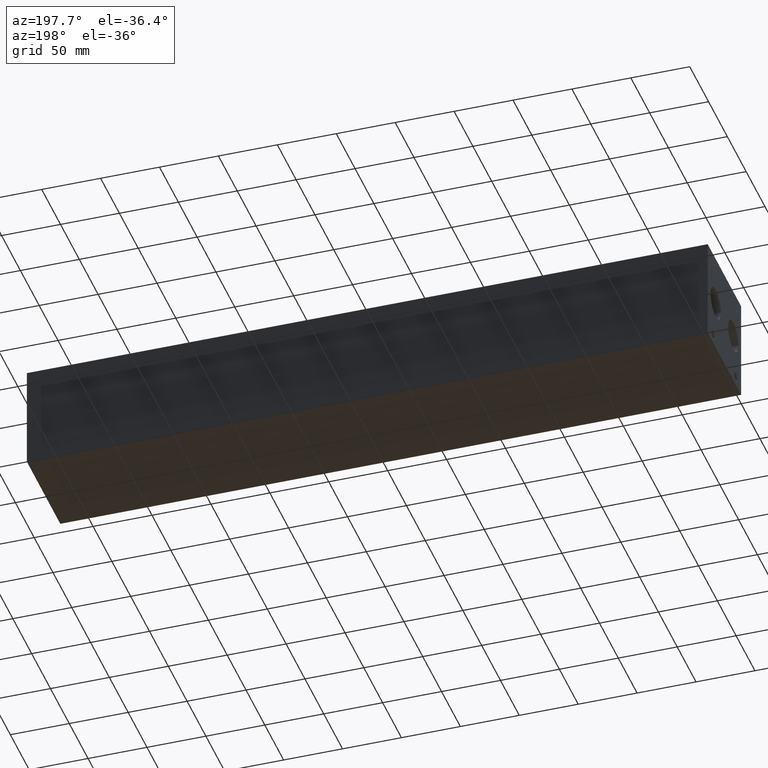
[diagram: clean part render]
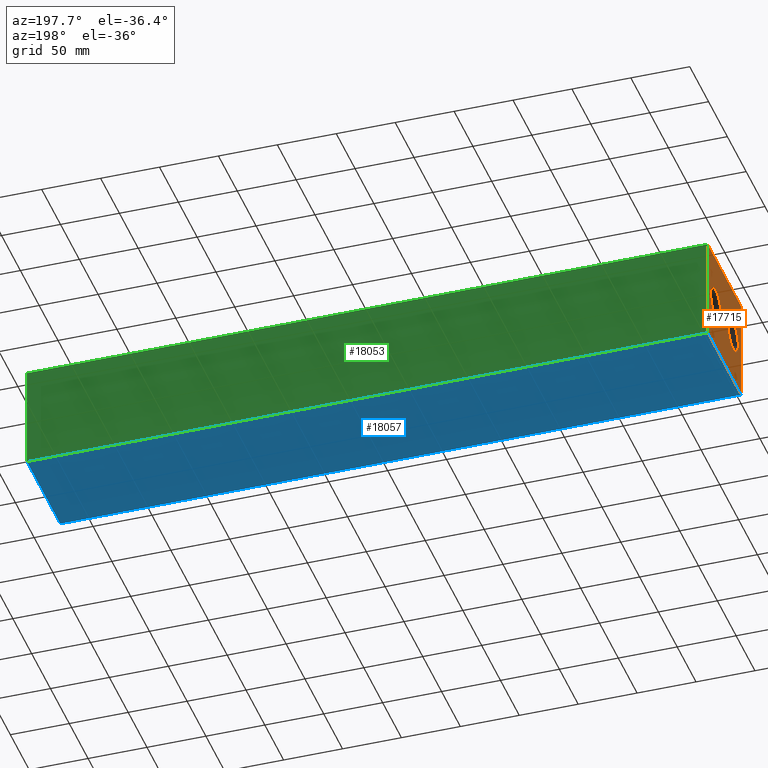
[diagram: same view with three faces highlighted in distinct colors, each labeled with its STEP entity id]
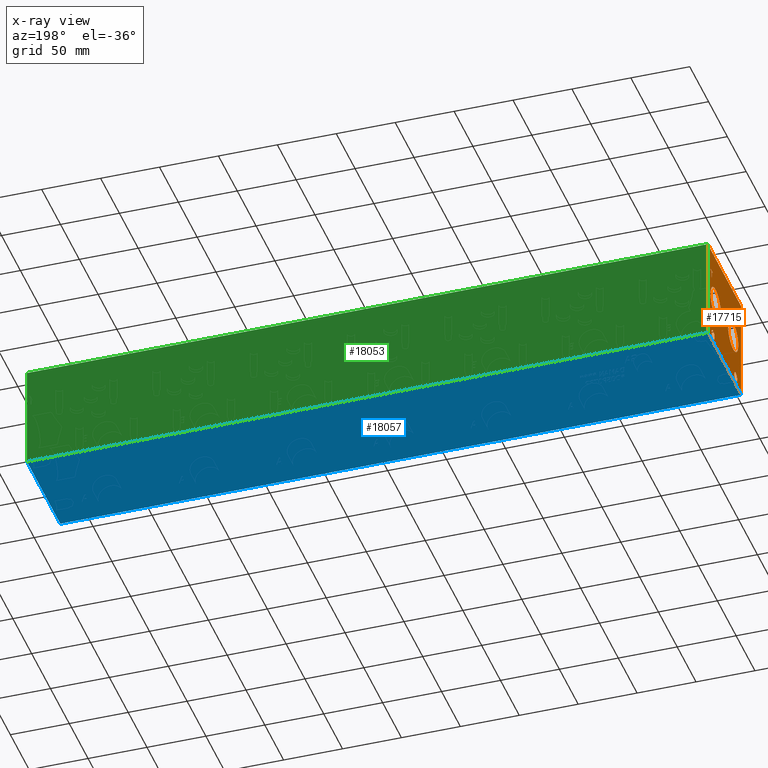
[diagram: x-ray of the same camera — body ghosted, the three highlighted faces saturated]
A machine part, auxiliary view with three faces highlighted in distinct colors.
The next image is the same camera in x-ray (body ghosted, the three faces saturated) — at least one of them is partly hidden behind the body in this view.
Their STEP definitions:

[orange] entity #17715 — the highlighted planar face has unit normal (-1, 0, 0).
#469=CIRCLE('',#18500,3.9624);
#470=CIRCLE('',#18501,3.9624);
#471=CIRCLE('',#18502,3.9624);
#472=CIRCLE('',#18503,3.9624);
#473=CIRCLE('',#18504,13.462);
#474=CIRCLE('',#18505,13.462);
#475=CIRCLE('',#18506,13.462);
#476=CIRCLE('',#18507,13.462);
#1294=B_SPLINE_CURVE_WITH_KNOTS('',2,(#29012,#29013,#29014,#29015),
 .UNSPECIFIED.,.F.,.F.,(3,1,3),(0.,1.,2.),.UNSPECIFIED.);
#1296=B_SPLINE_CURVE_WITH_KNOTS('',2,(#29033,#29034,#29035,#29036),
 .UNSPECIFIED.,.F.,.F.,(3,1,3),(0.,1.,2.),.UNSPECIFIED.);
#1298=B_SPLINE_CURVE_WITH_KNOTS('',2,(#29082,#29083,#29084,#29085),
 .UNSPECIFIED.,.F.,.F.,(3,1,3),(0.,1.,2.),.UNSPECIFIED.);
#1300=B_SPLINE_CURVE_WITH_KNOTS('',2,(#29100,#29101,#29102,#29103),
 .UNSPECIFIED.,.F.,.F.,(3,1,3),(0.,1.,2.),.UNSPECIFIED.);
#1417=FACE_BOUND('',#3143,.T.);
#1418=FACE_BOUND('',#3144,.T.);
#1419=FACE_BOUND('',#3145,.T.);
#1420=FACE_BOUND('',#3146,.T.);
#1421=FACE_BOUND('',#3147,.T.);
#1422=FACE_BOUND('',#3148,.T.);
#2131=FACE_OUTER_BOUND('',#3142,.T.);
#3142=EDGE_LOOP('',(#14229,#14230,#14231,#14232));
#3143=EDGE_LOOP('',(#14233,#14234));
#3144=EDGE_LOOP('',(#14235,#14236));
#3145=EDGE_LOOP('',(#14237,#14238));
#3146=EDGE_LOOP('',(#14239,#14240));
#3147=EDGE_LOOP('',(#14241,#14242,#14243,#14244,#14245,#14246,#14247,#14248));
#3148=EDGE_LOOP('',(#14249,#14250,#14251,#14252,#14253,#14254,#14255,#14256,
#14257));
#3644=LINE('',#23294,#5227);
#4813=LINE('',#29045,#6396);
#4816=LINE('',#29051,#6399);
#4819=LINE('',#29057,#6402);
#4822=LINE('',#29063,#6405);
#4825=LINE('',#29069,#6408);
#4829=LINE('',#29111,#6412);
#4830=LINE('',#29113,#6413);
#4831=LINE('',#29114,#6414);
#4832=LINE('',#29133,#6415);
#4833=LINE('',#29135,#6416);
#4834=LINE('',#29137,#6417);
#4835=LINE('',#29139,#6418);
#4836=LINE('',#29141,#6419);
#4837=LINE('',#29143,#6420);
#4838=LINE('',#29145,#6421);
#4839=LINE('',#29146,#6422);
#5227=VECTOR('',#19323,10.);
#6396=VECTOR('',#21310,10.);
#6399=VECTOR('',#21315,10.);
#6402=VECTOR('',#21320,10.);
#6405=VECTOR('',#21325,10.);
#6408=VECTOR('',#21330,10.);
#6412=VECTOR('',#21338,10.);
#6413=VECTOR('',#21339,10.);
#6414=VECTOR('',#21340,10.);
#6415=VECTOR('',#21357,10.);
#6416=VECTOR('',#21358,10.);
#6417=VECTOR('',#21359,10.);
#6418=VECTOR('',#21360,10.);
#6419=VECTOR('',#21361,10.);
#6420=VECTOR('',#21362,10.);
#6421=VECTOR('',#21363,10.);
#6422=VECTOR('',#21364,10.);
#6796=VERTEX_POINT('',#23287);
#6799=VERTEX_POINT('',#23292);
#7870=VERTEX_POINT('',#29010);
#7871=VERTEX_POINT('',#29011);
#7874=VERTEX_POINT('',#29032);
#7876=VERTEX_POINT('',#29044);
#7878=VERTEX_POINT('',#29050);
#7880=VERTEX_POINT('',#29056);
#7882=VERTEX_POINT('',#29062);
#7884=VERTEX_POINT('',#29068);
#7886=VERTEX_POINT('',#29081);
#7888=VERTEX_POINT('',#29110);
#7889=VERTEX_POINT('',#29112);
#7890=VERTEX_POINT('',#29115);
#7891=VERTEX_POINT('',#29116);
#7892=VERTEX_POINT('',#29119);
#7893=VERTEX_POINT('',#29120);
#7894=VERTEX_POINT('',#29123);
#7895=VERTEX_POINT('',#29124);
#7896=VERTEX_POINT('',#29127);
#7897=VERTEX_POINT('',#29128);
#7898=VERTEX_POINT('',#29131);
#7899=VERTEX_POINT('',#29132);
#7900=VERTEX_POINT('',#29134);
#7901=VERTEX_POINT('',#29136);
#7902=VERTEX_POINT('',#29138);
#7903=VERTEX_POINT('',#29140);
#7904=VERTEX_POINT('',#29142);
#7905=VERTEX_POINT('',#29144);
#8562=EDGE_CURVE('',#6796,#6799,#3644,.T.);
#10144=EDGE_CURVE('',#7870,#7871,#1294,.T.);
#10148=EDGE_CURVE('',#7874,#7870,#1296,.T.);
#10151=EDGE_CURVE('',#7876,#7874,#4813,.T.);
#10154=EDGE_CURVE('',#7878,#7876,#4816,.T.);
#10157=EDGE_CURVE('',#7880,#7878,#4819,.T.);
#10160=EDGE_CURVE('',#7882,#7880,#4822,.T.);
#10163=EDGE_CURVE('',#7884,#7882,#4825,.T.);
#10166=EDGE_CURVE('',#7886,#7884,#1298,.T.);
#10169=EDGE_CURVE('',#7871,#7886,#1300,.T.);
#10171=EDGE_CURVE('',#7888,#6796,#4829,.T.);
#10172=EDGE_CURVE('',#7889,#6799,#4830,.T.);
#10173=EDGE_CURVE('',#7888,#7889,#4831,.T.);
#10174=EDGE_CURVE('',#7890,#7891,#469,.T.);
#10175=EDGE_CURVE('',#7891,#7890,#470,.T.);
#10176=EDGE_CURVE('',#7892,#7893,#471,.T.);
#10177=EDGE_CURVE('',#7893,#7892,#472,.T.);
#10178=EDGE_CURVE('',#7894,#7895,#473,.T.);
#10179=EDGE_CURVE('',#7895,#7894,#474,.T.);
#10180=EDGE_CURVE('',#7896,#7897,#475,.T.);
#10181=EDGE_CURVE('',#7897,#7896,#476,.T.);
#10182=EDGE_CURVE('',#7898,#7899,#4832,.T.);
#10183=EDGE_CURVE('',#7899,#7900,#4833,.T.);
#10184=EDGE_CURVE('',#7900,#7901,#4834,.T.);
#10185=EDGE_CURVE('',#7901,#7902,#4835,.T.);
#10186=EDGE_CURVE('',#7902,#7903,#4836,.T.);
#10187=EDGE_CURVE('',#7903,#7904,#4837,.T.);
#10188=EDGE_CURVE('',#7904,#7905,#4838,.T.);
#10189=EDGE_CURVE('',#7905,#7898,#4839,.T.);
#14229=ORIENTED_EDGE('',*,*,#10171,.T.);
#14230=ORIENTED_EDGE('',*,*,#8562,.T.);
#14231=ORIENTED_EDGE('',*,*,#10172,.F.);
#14232=ORIENTED_EDGE('',*,*,#10173,.F.);
#14233=ORIENTED_EDGE('',*,*,#10174,.T.);
#14234=ORIENTED_EDGE('',*,*,#10175,.T.);
#14235=ORIENTED_EDGE('',*,*,#10176,.T.);
#14236=ORIENTED_EDGE('',*,*,#10177,.T.);
#14237=ORIENTED_EDGE('',*,*,#10178,.T.);
#14238=ORIENTED_EDGE('',*,*,#10179,.T.);
#14239=ORIENTED_EDGE('',*,*,#10180,.T.);
#14240=ORIENTED_EDGE('',*,*,#10181,.T.);
#14241=ORIENTED_EDGE('',*,*,#10182,.T.);
#14242=ORIENTED_EDGE('',*,*,#10183,.T.);
#14243=ORIENTED_EDGE('',*,*,#10184,.T.);
#14244=ORIENTED_EDGE('',*,*,#10185,.T.);
#14245=ORIENTED_EDGE('',*,*,#10186,.T.);
#14246=ORIENTED_EDGE('',*,*,#10187,.T.);
#14247=ORIENTED_EDGE('',*,*,#10188,.T.);
#14248=ORIENTED_EDGE('',*,*,#10189,.T.);
#14249=ORIENTED_EDGE('',*,*,#10144,.T.);
#14250=ORIENTED_EDGE('',*,*,#10169,.T.);
#14251=ORIENTED_EDGE('',*,*,#10166,.T.);
#14252=ORIENTED_EDGE('',*,*,#10163,.T.);
#14253=ORIENTED_EDGE('',*,*,#10160,.T.);
#14254=ORIENTED_EDGE('',*,*,#10157,.T.);
#14255=ORIENTED_EDGE('',*,*,#10154,.T.);
#14256=ORIENTED_EDGE('',*,*,#10151,.T.);
#14257=ORIENTED_EDGE('',*,*,#10148,.T.);
#16375=PLANE('',#18499);
#17715=ADVANCED_FACE('',(#2131,#1417,#1418,#1419,#1420,#1421,#1422),#16375,
 .T.);
#18499=AXIS2_PLACEMENT_3D('',#29109,#21336,#21337);
#18500=AXIS2_PLACEMENT_3D('',#29117,#21341,#21342);
#18501=AXIS2_PLACEMENT_3D('',#29118,#21343,#21344);
#18502=AXIS2_PLACEMENT_3D('',#29121,#21345,#21346);
#18503=AXIS2_PLACEMENT_3D('',#29122,#21347,#21348);
#18504=AXIS2_PLACEMENT_3D('',#29125,#21349,#21350);
#18505=AXIS2_PLACEMENT_3D('',#29126,#21351,#21352);
#18506=AXIS2_PLACEMENT_3D('',#29129,#21353,#21354);
#18507=AXIS2_PLACEMENT_3D('',#29130,#21355,#21356);
#19323=DIRECTION('',(0.,0.,1.));
#21310=DIRECTION('',(0.,-1.,-5.56775304226775E-15));
#21315=DIRECTION('',(0.,-3.14708893596576E-15,1.));
#21320=DIRECTION('',(0.,1.,0.));
#21325=DIRECTION('',(0.,2.81413604853751E-15,-1.));
#21330=DIRECTION('',(0.,1.,0.));
#21336=DIRECTION('center_axis',(-1.,0.,0.));
#21337=DIRECTION('ref_axis',(0.,-1.,0.));
#21338=DIRECTION('',(0.,-1.,0.));
#21339=DIRECTION('',(0.,-1.,0.));
#21340=DIRECTION('',(0.,0.,1.));
#21341=DIRECTION('center_axis',(1.,0.,0.));
#21342=DIRECTION('ref_axis',(0.,1.,0.));
#21343=DIRECTION('center_axis',(1.,0.,0.));
#21344=DIRECTION('ref_axis',(0.,1.,0.));
#21345=DIRECTION('center_axis',(1.,0.,0.));
#21346=DIRECTION('ref_axis',(0.,1.,0.));
#21347=DIRECTION('center_axis',(1.,0.,0.));
#21348=DIRECTION('ref_axis',(0.,1.,0.));
#21349=DIRECTION('center_axis',(1.,0.,0.));
#21350=DIRECTION('ref_axis',(0.,1.,0.));
#21351=DIRECTION('center_axis',(1.,0.,0.));
#21352=DIRECTION('ref_axis',(0.,1.,0.));
#21353=DIRECTION('center_axis',(1.,0.,0.));
#21354=DIRECTION('ref_axis',(0.,1.,0.));
#21355=DIRECTION('center_axis',(1.,0.,0.));
#21356=DIRECTION('ref_axis',(0.,1.,0.));
#21357=DIRECTION('',(0.,1.,0.));
#21358=DIRECTION('',(0.,-3.17280044688052E-15,1.));
#21359=DIRECTION('',(0.,1.,4.16909044227778E-15));
#21360=DIRECTION('',(0.,0.,1.));
#21361=DIRECTION('',(0.,-1.,-3.47984565141734E-15));
#21362=DIRECTION('',(0.,0.,-1.));
#21363=DIRECTION('',(0.,1.,0.));
#21364=DIRECTION('',(0.,3.17280044688052E-15,-1.));
#23287=CARTESIAN_POINT('',(0.,0.,0.));
#23292=CARTESIAN_POINT('',(0.,0.,88.9));
#23294=CARTESIAN_POINT('',(0.,0.,0.));
#29010=CARTESIAN_POINT('',(0.,7.21193279764059,69.4537681439707));
#29011=CARTESIAN_POINT('',(0.,6.455490345468,67.9357373726039));
#29012=CARTESIAN_POINT('Ctrl Pts',(0.,7.21193279764059,69.4537681439707));
#29013=CARTESIAN_POINT('Ctrl Pts',(0.,6.85686797315142,69.2119123939563));
#29014=CARTESIAN_POINT('Ctrl Pts',(0.,6.455490345468,68.4657616758269));
#29015=CARTESIAN_POINT('Ctrl Pts',(0.,6.455490345468,67.9357373726039));
#29032=CARTESIAN_POINT('',(0.,8.87404784561168,69.8499999046326));
#29033=CARTESIAN_POINT('Ctrl Pts',(0.,8.87404784561168,69.8499999046326));
#29034=CARTESIAN_POINT('Ctrl Pts',(0.,8.30800247323763,69.8499999046326));
#29035=CARTESIAN_POINT('Ctrl Pts',(0.,7.51553895191395,69.6647486918556));
#29036=CARTESIAN_POINT('Ctrl Pts',(0.,7.21193279764059,69.4537681439707));
#29044=CARTESIAN_POINT('',(0.,10.4692666223022,69.8499999046326));
#29045=CARTESIAN_POINT('',(0.,49.6846333111509,69.8499999046328));
#29050=CARTESIAN_POINT('',(0.,10.4692666223022,63.5));
#29051=CARTESIAN_POINT('',(0.,10.4692666223023,31.7499999999999));
#29056=CARTESIAN_POINT('',(0.,9.62534443076272,63.5));
#29057=CARTESIAN_POINT('',(0.,49.2626722153814,63.5));
#29062=CARTESIAN_POINT('',(0.,9.62534443076271,65.8670988299279));
#29063=CARTESIAN_POINT('',(0.,9.6253444307628,32.9335494149638));
#29068=CARTESIAN_POINT('',(0.,8.91006891476277,65.8670988299279));
#29069=CARTESIAN_POINT('',(0.,48.9050344573814,65.8670988299279));
#29081=CARTESIAN_POINT('',(0.,7.01124398379889,66.5257698086904));
#29082=CARTESIAN_POINT('Ctrl Pts',(0.,7.01124398379889,66.5257698086904));
#29083=CARTESIAN_POINT('Ctrl Pts',(0.,7.34057947318016,66.2015801863307));
#29084=CARTESIAN_POINT('Ctrl Pts',(0.,8.2308144679139,65.8670988299279));
#29085=CARTESIAN_POINT('Ctrl Pts',(0.,8.91006891476277,65.8670988299279));
#29100=CARTESIAN_POINT('Ctrl Pts',(0.,6.455490345468,67.9357373726039));
#29101=CARTESIAN_POINT('Ctrl Pts',(0.,6.455490345468,67.5240680108774));
#29102=CARTESIAN_POINT('Ctrl Pts',(0.,6.7488047656982,66.7830631597695));
#29103=CARTESIAN_POINT('Ctrl Pts',(0.,7.01124398379889,66.5257698086904));
#29109=CARTESIAN_POINT('Origin',(0.,88.9,0.));
#29110=CARTESIAN_POINT('',(0.,88.9,0.));
#29111=CARTESIAN_POINT('',(0.,88.9,0.));
#29112=CARTESIAN_POINT('',(0.,88.9,88.9));
#29113=CARTESIAN_POINT('',(0.,88.9,88.9));
#29114=CARTESIAN_POINT('',(0.,88.9,0.));
#29115=CARTESIAN_POINT('',(0.,78.5876,7.92479999999999));
#29116=CARTESIAN_POINT('',(0.,70.6628,7.92479999999999));
#29117=CARTESIAN_POINT('Origin',(0.,74.6252,7.92479999999999));
#29118=CARTESIAN_POINT('Origin',(0.,74.6252,7.92479999999999));
#29119=CARTESIAN_POINT('',(0.,18.2372,7.92479999999999));
#29120=CARTESIAN_POINT('',(0.,10.3124,7.92479999999999));
#29121=CARTESIAN_POINT('Origin',(0.,14.2748,7.92479999999999));
#29122=CARTESIAN_POINT('Origin',(0.,14.2748,7.92479999999999));
#29123=CARTESIAN_POINT('',(0.,34.544,44.45));
#29124=CARTESIAN_POINT('',(1.11022302462516E-15,7.62,44.45));
#29125=CARTESIAN_POINT('Origin',(0.,21.082,44.45));
#29126=CARTESIAN_POINT('Origin',(0.,21.082,44.45));
#29127=CARTESIAN_POINT('',(0.,81.28,44.45));
#29128=CARTESIAN_POINT('',(1.11022302462516E-15,54.356,44.45));
#29129=CARTESIAN_POINT('Origin',(0.,67.818,44.45));
#29130=CARTESIAN_POINT('Origin',(0.,67.818,44.45));
#29131=CARTESIAN_POINT('',(0.,77.993334728547,63.5));
#29132=CARTESIAN_POINT('',(0.,78.8372569200865,63.5));
#29133=CARTESIAN_POINT('',(0.,83.4466673642735,63.5));
#29134=CARTESIAN_POINT('',(0.,78.8372569200865,69.0987033194815));
#29135=CARTESIAN_POINT('',(0.,78.8372569200866,31.75));
#29136=CARTESIAN_POINT('',(0.,80.9676458670216,69.0987033194815));
#29137=CARTESIAN_POINT('',(0.,83.8686284600431,69.0987033194816));
#29138=CARTESIAN_POINT('',(0.,80.9676458670216,69.8499999046325));
#29139=CARTESIAN_POINT('',(0.,80.9676458670216,34.5493516597408));
#29140=CARTESIAN_POINT('',(0.,75.8629457816119,69.8499999046325));
#29141=CARTESIAN_POINT('',(0.,84.9338229335107,69.8499999046326));
#29142=CARTESIAN_POINT('',(0.,75.8629457816119,69.0987033194815));
#29143=CARTESIAN_POINT('',(0.,75.8629457816119,34.9249999523163));
#29144=CARTESIAN_POINT('',(0.,77.993334728547,69.0987033194815));
#29145=CARTESIAN_POINT('',(0.,82.381472890806,69.0987033194815));
#29146=CARTESIAN_POINT('',(0.,77.9933347285471,34.5493516597407));

[blue] entity #18057 — the highlighted planar face has unit normal (0, 0, 1).
#2473=FACE_OUTER_BOUND('',#3607,.T.);
#3607=EDGE_LOOP('',(#15974,#15975,#15976,#15977));
#3641=LINE('',#23289,#5224);
#4829=LINE('',#29111,#6412);
#4888=LINE('',#29383,#6471);
#5189=LINE('',#31191,#6772);
#5224=VECTOR('',#19320,10.);
#6412=VECTOR('',#21338,10.);
#6471=VECTOR('',#21451,10.);
#6772=VECTOR('',#23208,10.);
#6796=VERTEX_POINT('',#23287);
#6797=VERTEX_POINT('',#23288);
#7888=VERTEX_POINT('',#29110);
#7946=VERTEX_POINT('',#29382);
#8559=EDGE_CURVE('',#6796,#6797,#3641,.T.);
#10171=EDGE_CURVE('',#7888,#6796,#4829,.T.);
#10254=EDGE_CURVE('',#6797,#7946,#4888,.T.);
#11008=EDGE_CURVE('',#7946,#7888,#5189,.T.);
#15974=ORIENTED_EDGE('',*,*,#8559,.F.);
#15975=ORIENTED_EDGE('',*,*,#10171,.F.);
#15976=ORIENTED_EDGE('',*,*,#11008,.F.);
#15977=ORIENTED_EDGE('',*,*,#10254,.F.);
#16486=PLANE('',#19258);
#18057=ADVANCED_FACE('',(#2473),#16486,.F.);
#19258=AXIS2_PLACEMENT_3D('',#31196,#23216,#23217);
#19320=DIRECTION('',(1.,0.,0.));
#21338=DIRECTION('',(0.,-1.,0.));
#21451=DIRECTION('',(0.,1.,0.));
#23208=DIRECTION('',(-1.,0.,0.));
#23216=DIRECTION('center_axis',(0.,0.,1.));
#23217=DIRECTION('ref_axis',(1.,0.,0.));
#23287=CARTESIAN_POINT('',(0.,0.,0.));
#23288=CARTESIAN_POINT('',(577.85,0.,0.));
#23289=CARTESIAN_POINT('',(0.,0.,0.));
#29110=CARTESIAN_POINT('',(0.,88.9,0.));
#29111=CARTESIAN_POINT('',(0.,88.9,0.));
#29382=CARTESIAN_POINT('',(577.85,88.9,0.));
#29383=CARTESIAN_POINT('',(577.85,0.,0.));
#31191=CARTESIAN_POINT('',(577.85,88.9,0.));
#31196=CARTESIAN_POINT('Origin',(288.925,44.45,0.));

[green] entity #18053 — the highlighted planar face has unit normal (0, 1, 0).
#2469=FACE_OUTER_BOUND('',#3547,.T.);
#3547=EDGE_LOOP('',(#15840,#15841,#15842,#15843));
#4831=LINE('',#29114,#6414);
#4889=LINE('',#29385,#6472);
#5189=LINE('',#31191,#6772);
#5190=LINE('',#31192,#6773);
#6414=VECTOR('',#21340,10.);
#6472=VECTOR('',#21452,10.);
#6772=VECTOR('',#23208,10.);
#6773=VECTOR('',#23209,10.);
#7888=VERTEX_POINT('',#29110);
#7889=VERTEX_POINT('',#29112);
#7946=VERTEX_POINT('',#29382);
#7947=VERTEX_POINT('',#29384);
#10173=EDGE_CURVE('',#7888,#7889,#4831,.T.);
#10255=EDGE_CURVE('',#7946,#7947,#4889,.T.);
#11008=EDGE_CURVE('',#7946,#7888,#5189,.T.);
#11009=EDGE_CURVE('',#7947,#7889,#5190,.T.);
#15840=ORIENTED_EDGE('',*,*,#11008,.T.);
#15841=ORIENTED_EDGE('',*,*,#10173,.T.);
#15842=ORIENTED_EDGE('',*,*,#11009,.F.);
#15843=ORIENTED_EDGE('',*,*,#10255,.F.);
#16482=PLANE('',#19254);
#18053=ADVANCED_FACE('',(#2469),#16482,.T.);
#19254=AXIS2_PLACEMENT_3D('',#31190,#23206,#23207);
#21340=DIRECTION('',(0.,0.,1.));
#21452=DIRECTION('',(0.,0.,1.));
#23206=DIRECTION('center_axis',(0.,1.,0.));
#23207=DIRECTION('ref_axis',(-1.,0.,0.));
#23208=DIRECTION('',(-1.,0.,0.));
#23209=DIRECTION('',(-1.,0.,0.));
#29110=CARTESIAN_POINT('',(0.,88.9,0.));
#29112=CARTESIAN_POINT('',(0.,88.9,88.9));
#29114=CARTESIAN_POINT('',(0.,88.9,0.));
#29382=CARTESIAN_POINT('',(577.85,88.9,0.));
#29384=CARTESIAN_POINT('',(577.85,88.9,88.9));
#29385=CARTESIAN_POINT('',(577.85,88.9,0.));
#31190=CARTESIAN_POINT('Origin',(577.85,88.9,0.));
#31191=CARTESIAN_POINT('',(577.85,88.9,0.));
#31192=CARTESIAN_POINT('',(577.85,88.9,88.9));